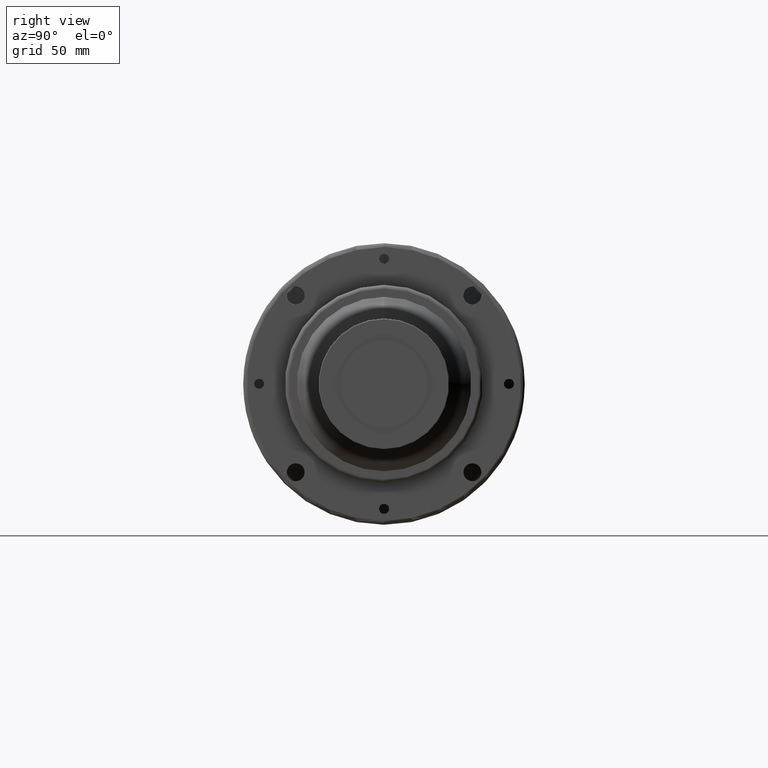
[diagram: clean part render]
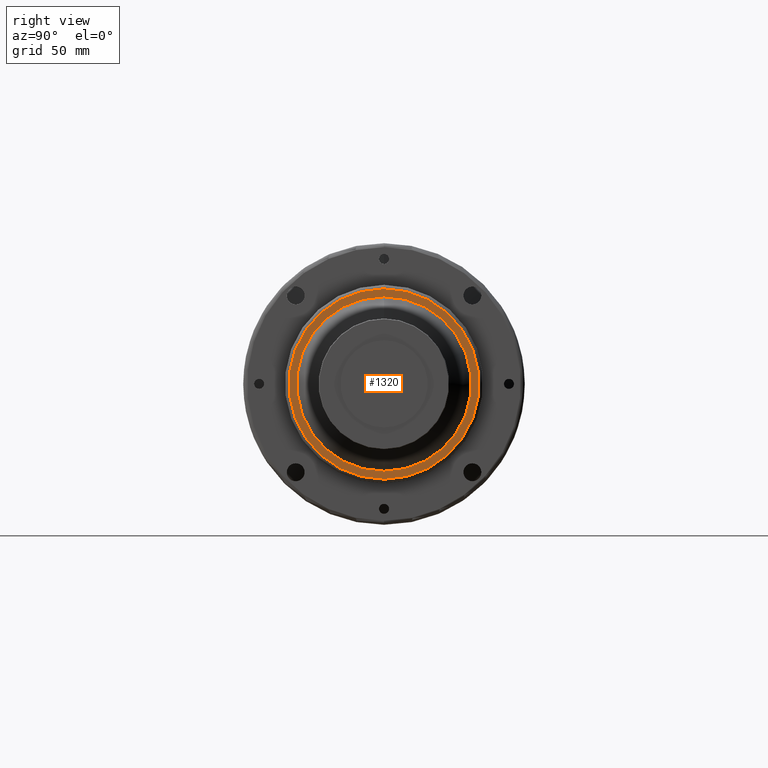
[diagram: same view with one face highlighted and labeled with its STEP entity id]
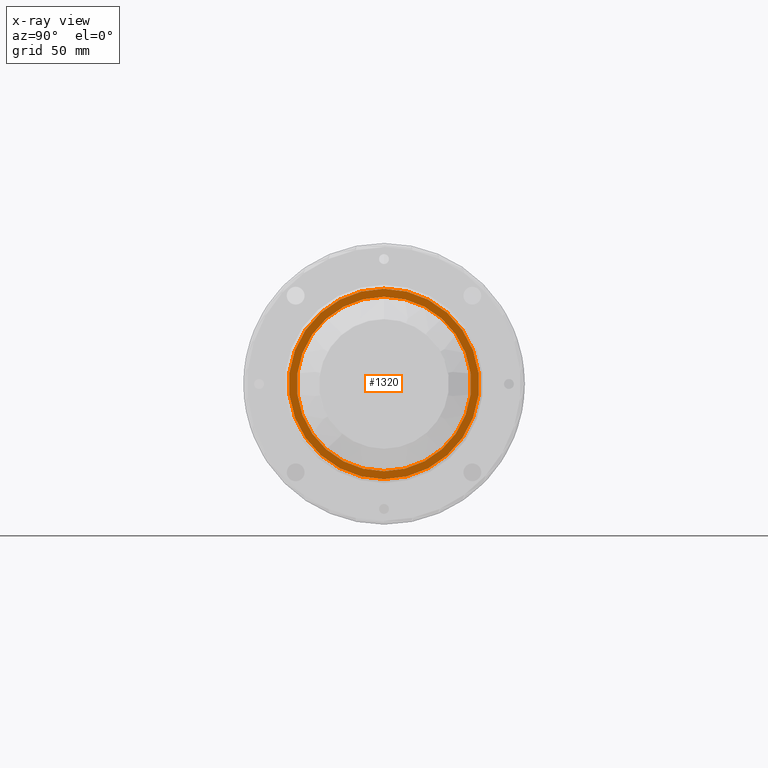
[diagram: x-ray of the same camera — body ghosted, the highlighted face saturated]
A machine part, right view. The second image highlights one B-rep face of the part: STEP entity #1320.
The next image is the same camera in x-ray: the body ghosted, the highlighted face saturated — about 0% of this face is hidden behind the body in this view.
In plain terms, the highlighted planar face has unit normal (-1, 0, -0).
Its self-contained STEP definition (entity closure, byte-faithful):
#25 = DIRECTION ( 'NONE',  ( -1.000000000000000000, -0.0000000000000000000, -0.0000000000000000000 ) ) ;
#162 = CARTESIAN_POINT ( 'NONE',  ( 158.5000000000000000, 0.0000000000000000000, 0.0000000000000000000 ) ) ;
#164 = VERTEX_POINT ( 'NONE', #1401 ) ;
#189 = DIRECTION ( 'NONE',  ( 0.0000000000000000000, 0.0000000000000000000, 1.000000000000000000 ) ) ;
#213 = CIRCLE ( 'NONE', #1322, 47.99999999999998600 ) ;
#297 = AXIS2_PLACEMENT_3D ( 'NONE', #1323, #25, #459 ) ;
#340 = AXIS2_PLACEMENT_3D ( 'NONE', #652, #1506, #799 ) ;
#363 = EDGE_CURVE ( 'NONE', #164, #1529, #692, .T. ) ;
#442 = ORIENTED_EDGE ( 'NONE', *, *, #449, .T. ) ;
#449 = EDGE_CURVE ( 'NONE', #1529, #164, #1092, .T. ) ;
#459 = DIRECTION ( 'NONE',  ( 0.0000000000000000000, 0.0000000000000000000, 1.000000000000000000 ) ) ;
#481 = DIRECTION ( 'NONE',  ( 0.0000000000000000000, 0.0000000000000000000, 1.000000000000000000 ) ) ;
#512 = ORIENTED_EDGE ( 'NONE', *, *, #1226, .F. ) ;
#560 = AXIS2_PLACEMENT_3D ( 'NONE', #1212, #1351, #481 ) ;
#563 = EDGE_CURVE ( 'NONE', #940, #1470, #213, .T. ) ;
#652 = CARTESIAN_POINT ( 'NONE',  ( 158.5000000000000000, 47.99999999999998600, 0.0000000000000000000 ) ) ;
#692 = CIRCLE ( 'NONE', #829, 44.00000000000000700 ) ;
#696 = CIRCLE ( 'NONE', #560, 47.99999999999998600 ) ;
#727 = DIRECTION ( 'NONE',  ( 0.0000000000000000000, 0.0000000000000000000, 1.000000000000000000 ) ) ;
#736 = EDGE_LOOP ( 'NONE', ( #1277, #512 ) ) ;
#799 = DIRECTION ( 'NONE',  ( -0.0000000000000000000, 0.0000000000000000000, 1.000000000000000000 ) ) ;
#829 = AXIS2_PLACEMENT_3D ( 'NONE', #162, #1170, #727 ) ;
#891 = CARTESIAN_POINT ( 'NONE',  ( 158.5000000000000000, 0.0000000000000000000, 0.0000000000000000000 ) ) ;
#940 = VERTEX_POINT ( 'NONE', #1304 ) ;
#1046 = DIRECTION ( 'NONE',  ( -1.000000000000000000, -0.0000000000000000000, -0.0000000000000000000 ) ) ;
#1071 = FACE_BOUND ( 'NONE', #1119, .T. ) ;
#1074 = PLANE ( 'NONE',  #340 ) ;
#1087 = ORIENTED_EDGE ( 'NONE', *, *, #363, .T. ) ;
#1092 = CIRCLE ( 'NONE', #297, 44.00000000000000700 ) ;
#1119 = EDGE_LOOP ( 'NONE', ( #442, #1087 ) ) ;
#1170 = DIRECTION ( 'NONE',  ( -1.000000000000000000, -0.0000000000000000000, -0.0000000000000000000 ) ) ;
#1212 = CARTESIAN_POINT ( 'NONE',  ( 158.5000000000000000, 0.0000000000000000000, 0.0000000000000000000 ) ) ;
#1226 = EDGE_CURVE ( 'NONE', #1470, #940, #696, .T. ) ;
#1277 = ORIENTED_EDGE ( 'NONE', *, *, #563, .F. ) ;
#1304 = CARTESIAN_POINT ( 'NONE',  ( 158.5000000000000000, 0.0000000000000000000, 47.99999999999998600 ) ) ;
#1320 = ADVANCED_FACE ( 'NONE', ( #1408, #1071 ), #1074, .F. ) ;
#1322 = AXIS2_PLACEMENT_3D ( 'NONE', #891, #1046, #189 ) ;
#1323 = CARTESIAN_POINT ( 'NONE',  ( 158.5000000000000000, 0.0000000000000000000, 0.0000000000000000000 ) ) ;
#1351 = DIRECTION ( 'NONE',  ( -1.000000000000000000, -0.0000000000000000000, -0.0000000000000000000 ) ) ;
#1401 = CARTESIAN_POINT ( 'NONE',  ( 158.5000000000000000, 5.388445916248354400E-015, -44.00000000000000000 ) ) ;
#1408 = FACE_OUTER_BOUND ( 'NONE', #736, .T. ) ;
#1470 = VERTEX_POINT ( 'NONE', #1675 ) ;
#1506 = DIRECTION ( 'NONE',  ( -1.000000000000000000, 0.0000000000000000000, -0.0000000000000000000 ) ) ;
#1529 = VERTEX_POINT ( 'NONE', #1840 ) ;
#1675 = CARTESIAN_POINT ( 'NONE',  ( 158.5000000000000000, 6.000769315822030100E-015, -47.99999999999998600 ) ) ;
#1840 = CARTESIAN_POINT ( 'NONE',  ( 158.5000000000000000, 0.0000000000000000000, 44.00000000000000000 ) ) ;